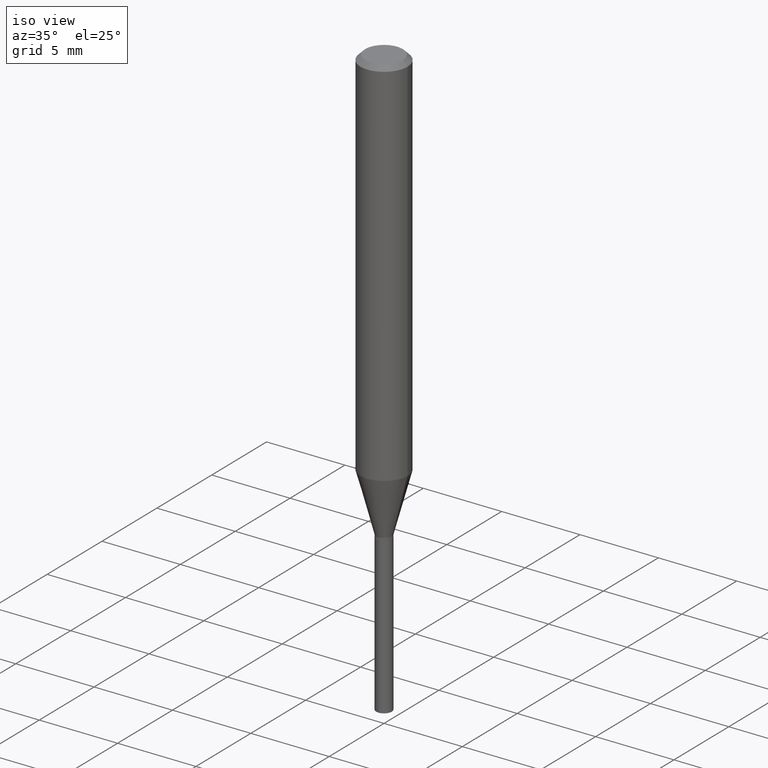
[diagram: clean part render]
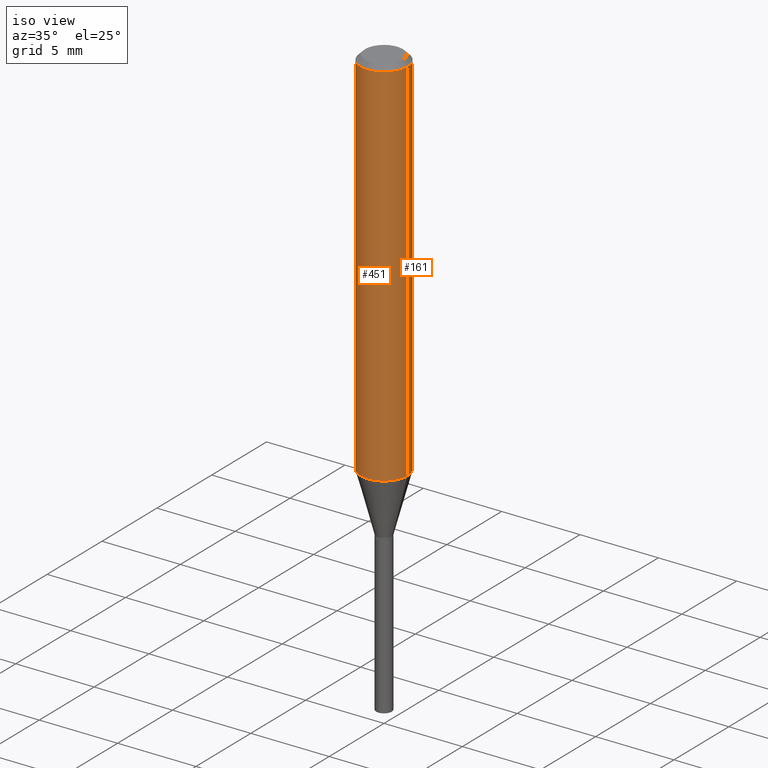
[diagram: same view with one multi-face feature highlighted, each face labeled with its STEP entity id]
A machine part, iso view. The highlighted faces form ONE feature: a constant-radius fillet chain: 2 tangent blend faces with common blend radius 1.4999 mm. The faces share edges in the B-rep.
Their STEP definitions:
[1] entity #161 (Cylinder):
#7 = VECTOR ( 'NONE', #143, 39.37007874015748143 ) ;
#26 = ORIENTED_EDGE ( 'NONE', *, *, #86, .F. ) ;
#34 = VERTEX_POINT ( 'NONE', #109 ) ;
#43 = VERTEX_POINT ( 'NONE', #341 ) ;
#47 = EDGE_CURVE ( 'NONE', #34, #385, #250, .T. ) ;
#72 = EDGE_LOOP ( 'NONE', ( #481, #194, #26, #153 ) ) ;
#86 = EDGE_CURVE ( 'NONE', #43, #343, #292, .T. ) ;
#97 = FACE_OUTER_BOUND ( 'NONE', #72, .T. ) ;
#109 = CARTESIAN_POINT ( 'NONE',  ( 0.05905000000000010935, -3.697818775159981807E-15, -0.9409973905606506817 ) ) ;
#115 = LINE ( 'NONE', #152, #7 ) ;
#124 = CARTESIAN_POINT ( 'NONE',  ( 2.888098660104663328E-31, -4.123439461173779030E-17, -0.01181000000000006871 ) ) ;
#143 = DIRECTION ( 'NONE',  ( -2.445468806185136877E-29, 3.491481338843145188E-15, 1.000000000000000000 ) ) ;
#152 = CARTESIAN_POINT ( 'NONE',  ( 0.05905000000000005383, -4.123439461173744271E-16, 2.879382386107502672E-30 ) ) ;
#153 = ORIENTED_EDGE ( 'NONE', *, *, #360, .F. ) ;
#161 = ADVANCED_FACE ( 'NONE', ( #97 ), #431, .T. ) ;
#175 = EDGE_CURVE ( 'NONE', #385, #343, #287, .T. ) ;
#194 = ORIENTED_EDGE ( 'NONE', *, *, #175, .T. ) ;
#234 = DIRECTION ( 'NONE',  ( 1.000000000000000000, -6.982962677686267499E-15, 0.000000000000000000 ) ) ;
#235 = DIRECTION ( 'NONE',  ( 1.000000000000000000, -6.982962677686266711E-15, 0.000000000000000000 ) ) ;
#246 = DIRECTION ( 'NONE',  ( 1.000000000000000000, -6.982962677686266711E-15, 4.876176775795935793E-29 ) ) ;
#250 = CIRCLE ( 'NONE', #368, 0.05905000000000010935 ) ;
#287 = LINE ( 'NONE', #397, #392 ) ;
#292 = CIRCLE ( 'NONE', #476, 0.05904999999999999832 ) ;
#299 = AXIS2_PLACEMENT_3D ( 'NONE', #365, #318, #246 ) ;
#308 = CARTESIAN_POINT ( 'NONE',  ( 2.301179765317683209E-29, -3.285474829042607282E-15, -0.9409973905606506817 ) ) ;
#318 = DIRECTION ( 'NONE',  ( -2.445468806185136597E-29, 3.491481338843145583E-15, 1.000000000000000000 ) ) ;
#341 = CARTESIAN_POINT ( 'NONE',  ( 0.05904999999999999832, -4.535783407291118600E-16, -0.01181000000000006871 ) ) ;
#343 = VERTEX_POINT ( 'NONE', #443 ) ;
#360 = EDGE_CURVE ( 'NONE', #34, #43, #115, .T. ) ;
#365 = CARTESIAN_POINT ( 'NONE',  ( 0.000000000000000000, 0.000000000000000000, 0.000000000000000000 ) ) ;
#368 = AXIS2_PLACEMENT_3D ( 'NONE', #308, #453, #234 ) ;
#371 = CARTESIAN_POINT ( 'NONE',  ( -0.05905000000000010935, -2.865899343576267000E-15, -0.9409973905606506817 ) ) ;
#385 = VERTEX_POINT ( 'NONE', #371 ) ;
#392 = VECTOR ( 'NONE', #474, 39.37007874015748143 ) ;
#397 = CARTESIAN_POINT ( 'NONE',  ( -0.05905000000000005383, 4.195754854663395423E-16, -2.904631170795524694E-30 ) ) ;
#431 = CYLINDRICAL_SURFACE ( 'NONE', #299, 0.05905000000000005383 ) ;
#443 = CARTESIAN_POINT ( 'NONE',  ( -0.05904999999999999832, -1.243779126360832618E-15, -0.01181000000000006871 ) ) ;
#453 = DIRECTION ( 'NONE',  ( -2.445468806185136597E-29, 3.491481338843145583E-15, 1.000000000000000000 ) ) ;
#464 = DIRECTION ( 'NONE',  ( -2.445468806185136597E-29, 3.491481338843145583E-15, 1.000000000000000000 ) ) ;
#474 = DIRECTION ( 'NONE',  ( -2.445468806185136877E-29, 3.491481338843145188E-15, 1.000000000000000000 ) ) ;
#476 = AXIS2_PLACEMENT_3D ( 'NONE', #124, #464, #235 ) ;
#481 = ORIENTED_EDGE ( 'NONE', *, *, #47, .T. ) ;
[2] entity #451 (Cylinder):
#7 = VECTOR ( 'NONE', #143, 39.37007874015748143 ) ;
#9 = EDGE_CURVE ( 'NONE', #385, #34, #44, .T. ) ;
#30 = DIRECTION ( 'NONE',  ( 1.000000000000000000, -6.982962677686266711E-15, 0.000000000000000000 ) ) ;
#33 = CARTESIAN_POINT ( 'NONE',  ( 0.000000000000000000, 0.000000000000000000, 0.000000000000000000 ) ) ;
#34 = VERTEX_POINT ( 'NONE', #109 ) ;
#43 = VERTEX_POINT ( 'NONE', #341 ) ;
#44 = CIRCLE ( 'NONE', #231, 0.05905000000000010935 ) ;
#69 = CIRCLE ( 'NONE', #348, 0.05904999999999999832 ) ;
#74 = CYLINDRICAL_SURFACE ( 'NONE', #402, 0.05905000000000005383 ) ;
#76 = ORIENTED_EDGE ( 'NONE', *, *, #175, .F. ) ;
#109 = CARTESIAN_POINT ( 'NONE',  ( 0.05905000000000010935, -3.697818775159981807E-15, -0.9409973905606506817 ) ) ;
#114 = DIRECTION ( 'NONE',  ( -2.445468806185136597E-29, 3.491481338843145583E-15, 1.000000000000000000 ) ) ;
#115 = LINE ( 'NONE', #152, #7 ) ;
#143 = DIRECTION ( 'NONE',  ( -2.445468806185136877E-29, 3.491481338843145188E-15, 1.000000000000000000 ) ) ;
#146 = EDGE_LOOP ( 'NONE', ( #76, #450, #377, #302 ) ) ;
#152 = CARTESIAN_POINT ( 'NONE',  ( 0.05905000000000005383, -4.123439461173744271E-16, 2.879382386107502672E-30 ) ) ;
#175 = EDGE_CURVE ( 'NONE', #385, #343, #287, .T. ) ;
#182 = DIRECTION ( 'NONE',  ( 1.000000000000000000, -6.982962677686267499E-15, 0.000000000000000000 ) ) ;
#191 = CARTESIAN_POINT ( 'NONE',  ( 2.301179765317683209E-29, -3.285474829042607282E-15, -0.9409973905606506817 ) ) ;
#223 = DIRECTION ( 'NONE',  ( -2.445468806185136597E-29, 3.491481338843145583E-15, 1.000000000000000000 ) ) ;
#231 = AXIS2_PLACEMENT_3D ( 'NONE', #191, #114, #182 ) ;
#287 = LINE ( 'NONE', #397, #392 ) ;
#302 = ORIENTED_EDGE ( 'NONE', *, *, #419, .F. ) ;
#303 = DIRECTION ( 'NONE',  ( 1.000000000000000000, -6.982962677686266711E-15, 4.876176775795935793E-29 ) ) ;
#307 = CARTESIAN_POINT ( 'NONE',  ( 2.888098660104663328E-31, -4.123439461173779030E-17, -0.01181000000000006871 ) ) ;
#341 = CARTESIAN_POINT ( 'NONE',  ( 0.05904999999999999832, -4.535783407291118600E-16, -0.01181000000000006871 ) ) ;
#343 = VERTEX_POINT ( 'NONE', #443 ) ;
#348 = AXIS2_PLACEMENT_3D ( 'NONE', #307, #223, #30 ) ;
#360 = EDGE_CURVE ( 'NONE', #34, #43, #115, .T. ) ;
#371 = CARTESIAN_POINT ( 'NONE',  ( -0.05905000000000010935, -2.865899343576267000E-15, -0.9409973905606506817 ) ) ;
#377 = ORIENTED_EDGE ( 'NONE', *, *, #360, .T. ) ;
#385 = VERTEX_POINT ( 'NONE', #371 ) ;
#392 = VECTOR ( 'NONE', #474, 39.37007874015748143 ) ;
#397 = CARTESIAN_POINT ( 'NONE',  ( -0.05905000000000005383, 4.195754854663395423E-16, -2.904631170795524694E-30 ) ) ;
#402 = AXIS2_PLACEMENT_3D ( 'NONE', #33, #488, #303 ) ;
#412 = FACE_OUTER_BOUND ( 'NONE', #146, .T. ) ;
#419 = EDGE_CURVE ( 'NONE', #343, #43, #69, .T. ) ;
#443 = CARTESIAN_POINT ( 'NONE',  ( -0.05904999999999999832, -1.243779126360832618E-15, -0.01181000000000006871 ) ) ;
#450 = ORIENTED_EDGE ( 'NONE', *, *, #9, .T. ) ;
#451 = ADVANCED_FACE ( 'NONE', ( #412 ), #74, .T. ) ;
#474 = DIRECTION ( 'NONE',  ( -2.445468806185136877E-29, 3.491481338843145188E-15, 1.000000000000000000 ) ) ;
#488 = DIRECTION ( 'NONE',  ( -2.445468806185136597E-29, 3.491481338843145583E-15, 1.000000000000000000 ) ) ;